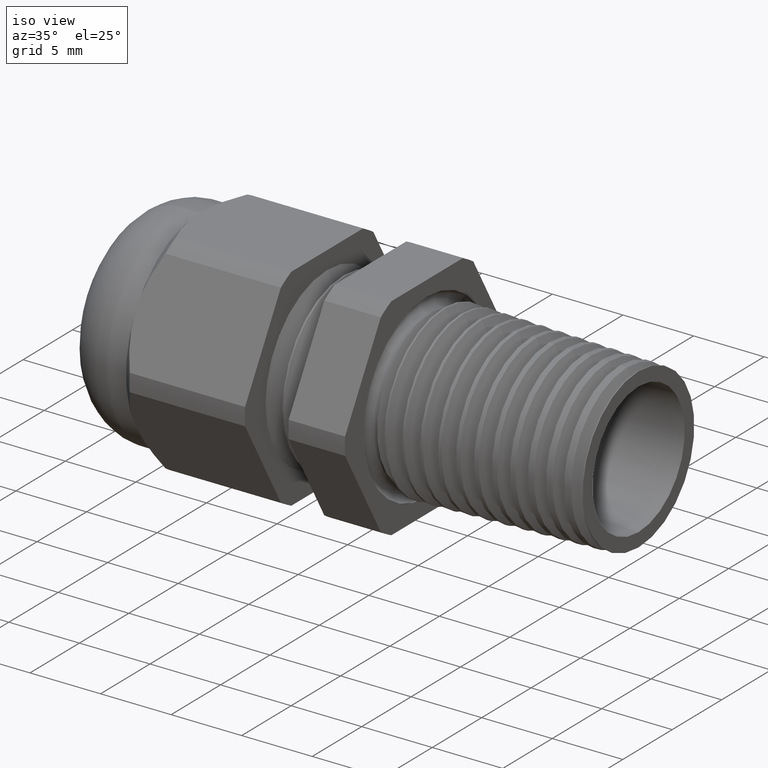
[diagram: clean part render]
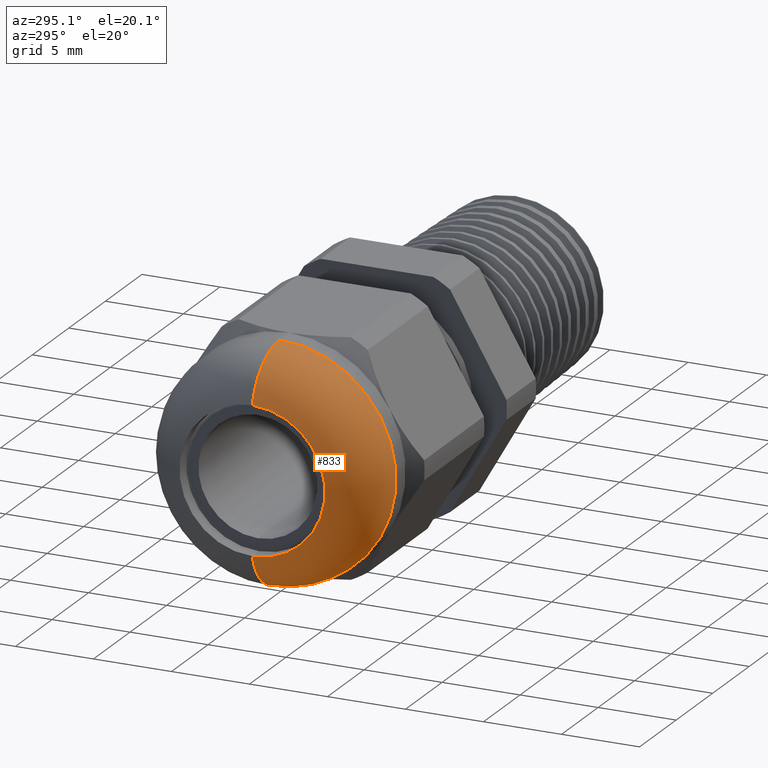
[diagram: tour spotlight — one face highlighted and labeled with its STEP entity id]
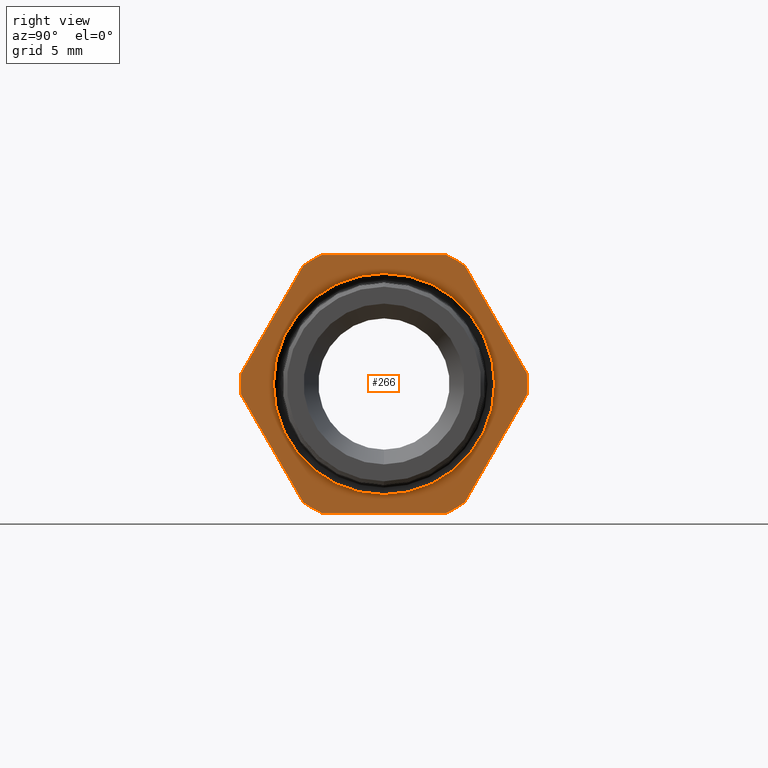
[diagram: tour spotlight — one face highlighted and labeled with its STEP entity id]
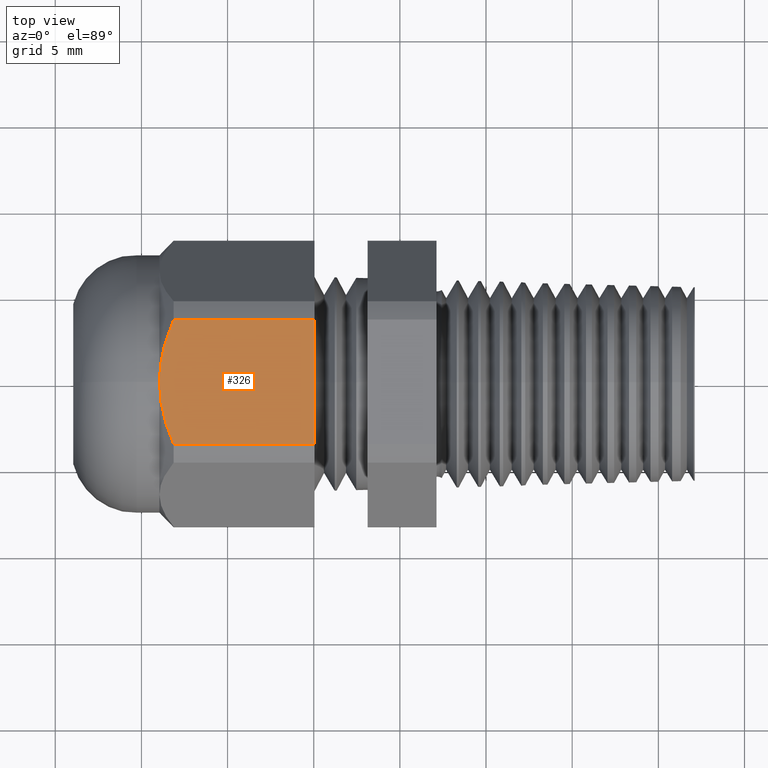
[diagram: tour spotlight — one face highlighted and labeled with its STEP entity id]
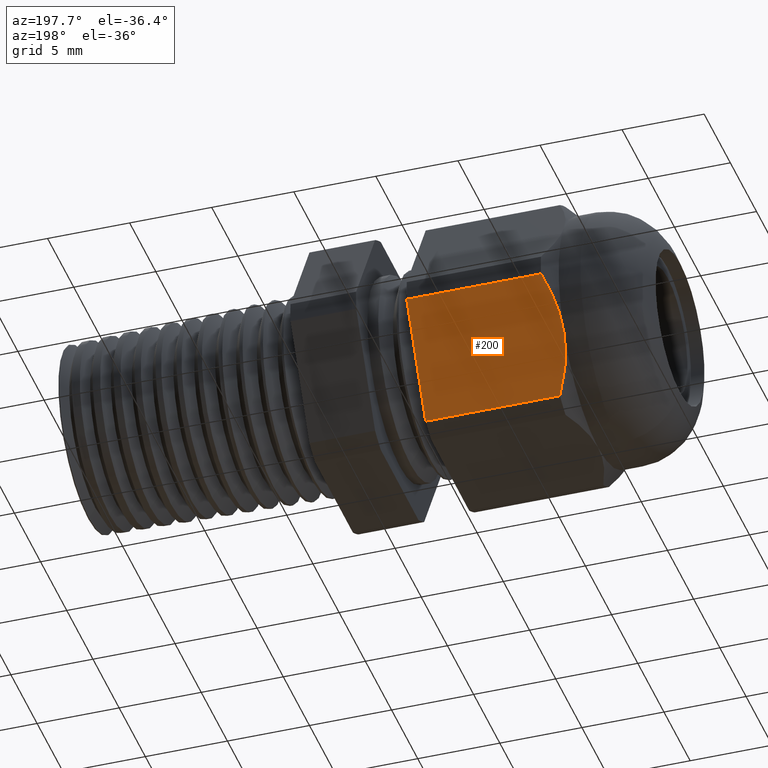
[diagram: tour spotlight — one face highlighted and labeled with its STEP entity id]
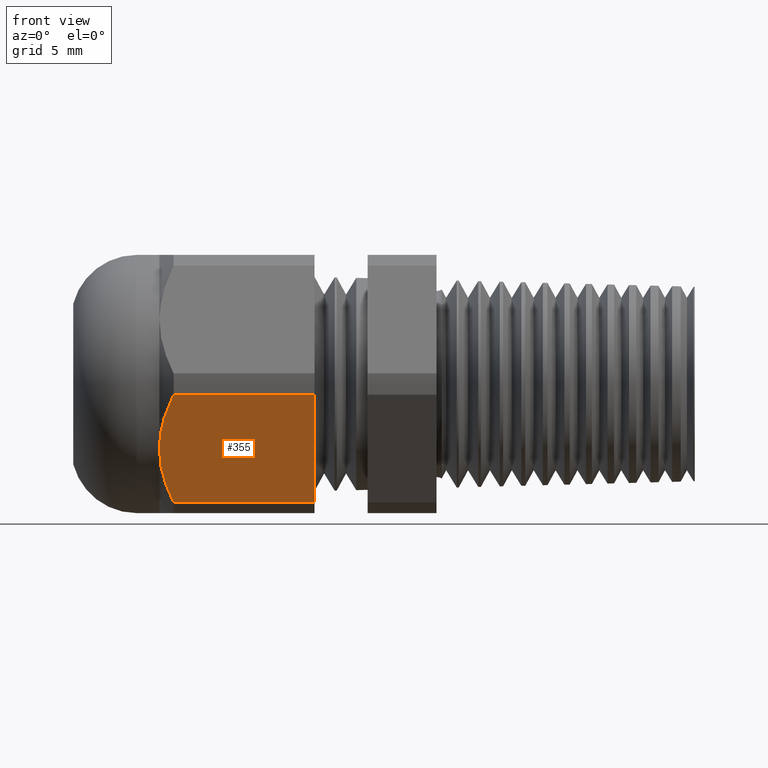
[diagram: tour spotlight — one face highlighted and labeled with its STEP entity id]
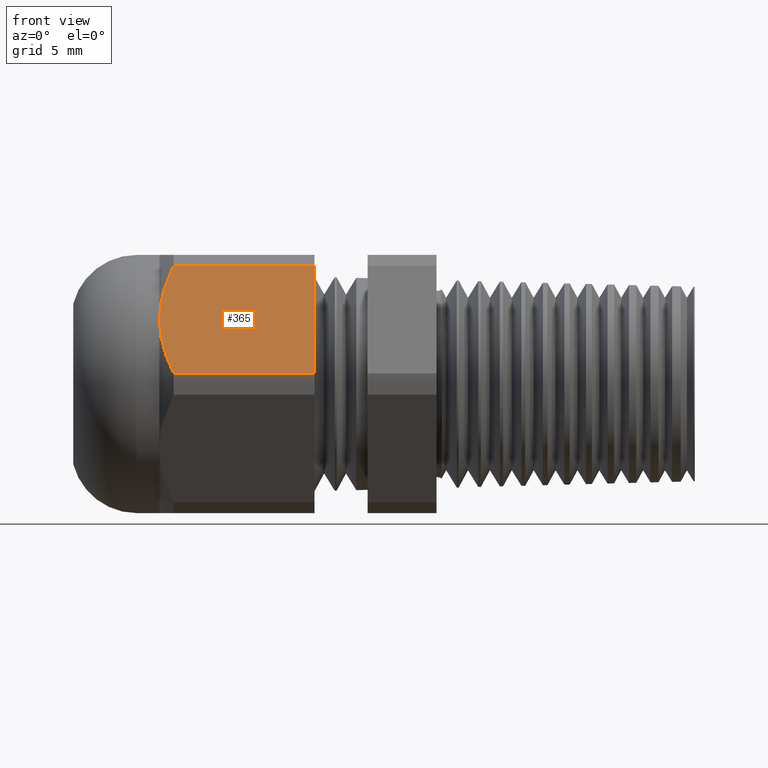
[diagram: tour spotlight — one face highlighted and labeled with its STEP entity id]
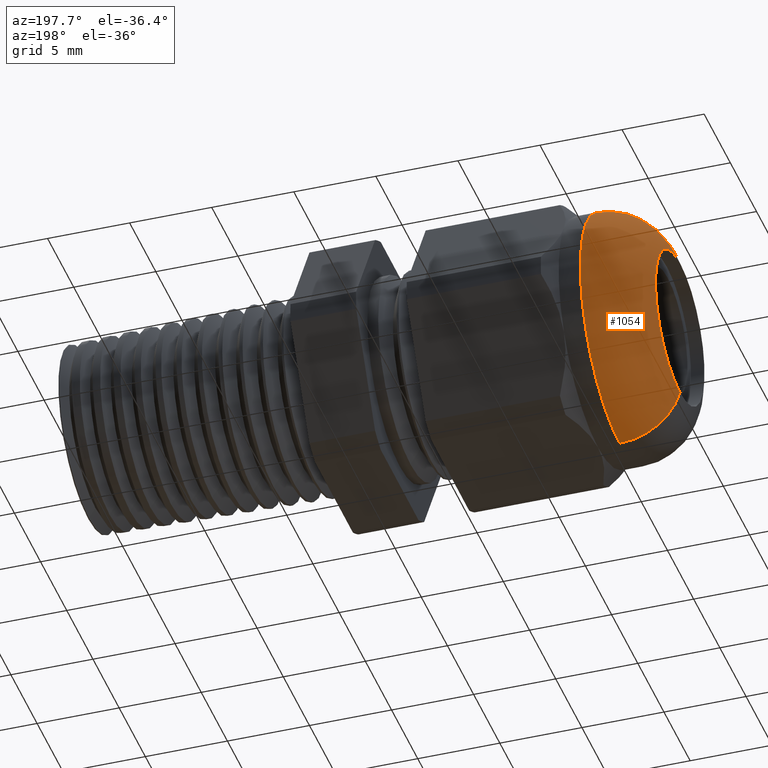
[diagram: tour spotlight — one face highlighted and labeled with its STEP entity id]
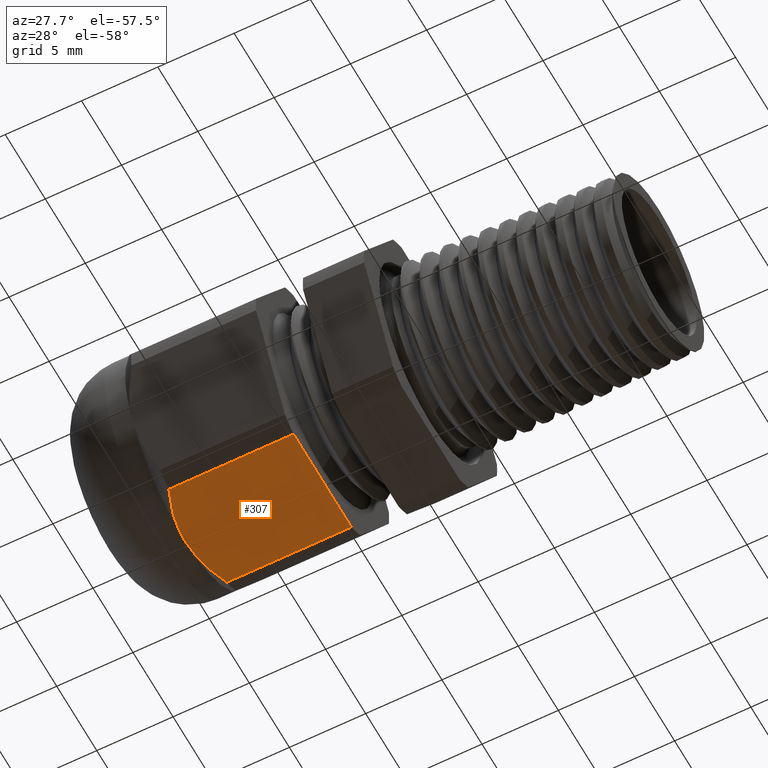
[diagram: tour spotlight — one face highlighted and labeled with its STEP entity id]
A machine part: a face-by-face anatomy tour. The part has 141 B-rep faces; the first image is the clean iso view, then the 8 largest visible faces are spotlighted one at a time (largest first), each with its STEP entity span.

Face 1 — auxiliary view, entity #833. In plain terms, the highlighted toroidal blend (fillet) surface has major radius 3.683 mm and minor (blend) radius 3.81 mm.
Definition (entity closure, byte-faithful):
#193 = EDGE_CURVE ( 'NONE', #1090, #1089, #1717, .T. ) ;
#492 = EDGE_CURVE ( 'NONE', #1065, #1058, #2314, .T. ) ;
#833 = ADVANCED_FACE ( 'NONE', ( #2847 ), #2846, .T. ) ;
#834 = EDGE_LOOP ( 'NONE', ( #835, #836, #888, #889 ) ) ;
#835 = ORIENTED_EDGE ( 'NONE', *, *, #1088, .F. ) ;
#836 = ORIENTED_EDGE ( 'NONE', *, *, #492, .F. ) ;
#888 = ORIENTED_EDGE ( 'NONE', *, *, #1144, .T. ) ;
#889 = ORIENTED_EDGE ( 'NONE', *, *, #193, .T. ) ;
#1058 = VERTEX_POINT ( 'NONE', #3200 ) ;
#1065 = VERTEX_POINT ( 'NONE', #3188 ) ;
#1088 = EDGE_CURVE ( 'NONE', #1058, #1089, #3205, .T. ) ;
#1089 = VERTEX_POINT ( 'NONE', #3262 ) ;
#1090 = VERTEX_POINT ( 'NONE', #3261 ) ;
#1144 = EDGE_CURVE ( 'NONE', #1065, #1090, #3358, .T. ) ;
#1713 = DIRECTION ( 'NONE',  ( 0.0000000000000000000, 0.0000000000000000000, -1.000000000000000000 ) ) ;
#1714 = DIRECTION ( 'NONE',  ( 1.000000000000000000, 0.0000000000000000000, 0.0000000000000000000 ) ) ;
#1715 = CARTESIAN_POINT ( 'NONE',  ( -1.139999999999999900, 0.0000000000000000000, 0.0000000000000000000 ) ) ;
#1716 = AXIS2_PLACEMENT_3D ( 'NONE', #1715, #1714, #1713 ) ;
#1717 = CIRCLE ( 'NONE', #1716, 0.1837500000000000000 ) ;
#2311 = DIRECTION ( 'NONE',  ( 0.0000000000000000000, 0.0000000000000000000, 1.000000000000000000 ) ) ;
#2312 = DIRECTION ( 'NONE',  ( 1.000000000000000000, 0.0000000000000000000, 0.0000000000000000000 ) ) ;
#2313 = AXIS2_PLACEMENT_3D ( 'NONE', #2319, #2312, #2311 ) ;
#2314 = CIRCLE ( 'NONE', #2313, 0.2950000000000000400 ) ;
#2319 = CARTESIAN_POINT ( 'NONE',  ( -0.9950916237755731400, 0.0000000000000000000, 0.0000000000000000000 ) ) ;
#2841 = DIRECTION ( 'NONE',  ( 0.0000000000000000000, 0.0000000000000000000, 1.000000000000000000 ) ) ;
#2842 = DIRECTION ( 'NONE',  ( -1.000000000000000000, 0.0000000000000000000, 0.0000000000000000000 ) ) ;
#2843 = CARTESIAN_POINT ( 'NONE',  ( -0.9950916237755731400, 0.0000000000000000000, 0.0000000000000000000 ) ) ;
#2844 = AXIS2_PLACEMENT_3D ( 'NONE', #2843, #2842, #2841 ) ;
#2846 = TOROIDAL_SURFACE ( 'NONE', #2844, 0.1450000000000000500, 0.1499999999999999900 ) ;
#2847 = FACE_OUTER_BOUND ( 'NONE', #834, .T. ) ;
#3188 = CARTESIAN_POINT ( 'NONE',  ( -0.9950916237755731400, 3.612708057484692600E-017, 0.2950000000000000400 ) ) ;
#3200 = CARTESIAN_POINT ( 'NONE',  ( -0.9950916237755731400, 0.0000000000000000000, -0.2950000000000000400 ) ) ;
#3203 = CARTESIAN_POINT ( 'NONE',  ( -0.9950916237755731400, 1.775737858763662800E-017, -0.1450000000000000500 ) ) ;
#3204 = AXIS2_PLACEMENT_3D ( 'NONE', #3203, #3264, #3263 ) ;
#3205 = CIRCLE ( 'NONE', #3204, 0.1499999999999999900 ) ;
#3261 = CARTESIAN_POINT ( 'NONE',  ( -1.139999999999999900, 2.250288493433261500E-017, 0.1837500000000000000 ) ) ;
#3262 = CARTESIAN_POINT ( 'NONE',  ( -1.139999999999999900, 0.0000000000000000000, -0.1837500000000000000 ) ) ;
#3263 = DIRECTION ( 'NONE',  ( 0.0000000000000000000, -1.224646799147353000E-016, 1.000000000000000000 ) ) ;
#3264 = DIRECTION ( 'NONE',  ( 0.0000000000000000000, 1.000000000000000000, 1.224646799147353200E-016 ) ) ;
#3354 = DIRECTION ( 'NONE',  ( 0.0000000000000000000, 0.0000000000000000000, -1.000000000000000000 ) ) ;
#3355 = DIRECTION ( 'NONE',  ( 0.0000000000000000000, -1.000000000000000000, 0.0000000000000000000 ) ) ;
#3356 = CARTESIAN_POINT ( 'NONE',  ( -0.9950916237755731400, 0.0000000000000000000, 0.1450000000000000500 ) ) ;
#3357 = AXIS2_PLACEMENT_3D ( 'NONE', #3356, #3355, #3354 ) ;
#3358 = CIRCLE ( 'NONE', #3357, 0.1499999999999999900 ) ;

Face 2 — right view, entity #266. In plain terms, the highlighted planar face has unit normal (1, 0, 0).
Definition (entity closure, byte-faithful):
#198 = ORIENTED_EDGE ( 'NONE', *, *, #205, .T. ) ;
#205 = EDGE_CURVE ( 'NONE', #207, #206, #1754, .T. ) ;
#206 = VERTEX_POINT ( 'NONE', #1750 ) ;
#207 = VERTEX_POINT ( 'NONE', #1749 ) ;
#208 = ORIENTED_EDGE ( 'NONE', *, *, #209, .T. ) ;
#209 = EDGE_CURVE ( 'NONE', #213, #228, #1748, .T. ) ;
#210 = EDGE_LOOP ( 'NONE', ( #198, #273, #214, #237, #208, #271, #232, #219, #222, #225, #274, #261 ) ) ;
#211 = EDGE_CURVE ( 'NONE', #206, #260, #1744, .T. ) ;
#212 = EDGE_CURVE ( 'NONE', #283, #213, #1739, .T. ) ;
#213 = VERTEX_POINT ( 'NONE', #1734 ) ;
#214 = ORIENTED_EDGE ( 'NONE', *, *, #229, .T. ) ;
#215 = EDGE_CURVE ( 'NONE', #1141, #1046, #1733, .T. ) ;
#219 = ORIENTED_EDGE ( 'NONE', *, *, #220, .T. ) ;
#220 = EDGE_CURVE ( 'NONE', #234, #221, #1789, .T. ) ;
#221 = VERTEX_POINT ( 'NONE', #1779 ) ;
#222 = ORIENTED_EDGE ( 'NONE', *, *, #223, .T. ) ;
#223 = EDGE_CURVE ( 'NONE', #221, #224, #1778, .T. ) ;
#224 = VERTEX_POINT ( 'NONE', #1774 ) ;
#225 = ORIENTED_EDGE ( 'NONE', *, *, #226, .T. ) ;
#226 = EDGE_CURVE ( 'NONE', #224, #227, #1773, .T. ) ;
#227 = VERTEX_POINT ( 'NONE', #1768 ) ;
#228 = VERTEX_POINT ( 'NONE', #1767 ) ;
#229 = EDGE_CURVE ( 'NONE', #260, #283, #1766, .T. ) ;
#230 = EDGE_CURVE ( 'NONE', #228, #231, #1762, .T. ) ;
#231 = VERTEX_POINT ( 'NONE', #1820 ) ;
#232 = ORIENTED_EDGE ( 'NONE', *, *, #233, .T. ) ;
#233 = EDGE_CURVE ( 'NONE', #231, #234, #1819, .T. ) ;
#234 = VERTEX_POINT ( 'NONE', #1815 ) ;
#237 = ORIENTED_EDGE ( 'NONE', *, *, #212, .T. ) ;
#260 = VERTEX_POINT ( 'NONE', #1836 ) ;
#261 = ORIENTED_EDGE ( 'NONE', *, *, #262, .T. ) ;
#262 = EDGE_CURVE ( 'NONE', #276, #207, #1835, .T. ) ;
#263 = EDGE_LOOP ( 'NONE', ( #264, #265 ) ) ;
#264 = ORIENTED_EDGE ( 'NONE', *, *, #1146, .T. ) ;
#265 = ORIENTED_EDGE ( 'NONE', *, *, #215, .T. ) ;
#266 = ADVANCED_FACE ( 'NONE', ( #1830, #1829 ), #1828, .T. ) ;
#271 = ORIENTED_EDGE ( 'NONE', *, *, #230, .T. ) ;
#273 = ORIENTED_EDGE ( 'NONE', *, *, #211, .T. ) ;
#274 = ORIENTED_EDGE ( 'NONE', *, *, #275, .T. ) ;
#275 = EDGE_CURVE ( 'NONE', #227, #276, #1879, .T. ) ;
#276 = VERTEX_POINT ( 'NONE', #1875 ) ;
#283 = VERTEX_POINT ( 'NONE', #1867 ) ;
#1046 = VERTEX_POINT ( 'NONE', #3159 ) ;
#1141 = VERTEX_POINT ( 'NONE', #3300 ) ;
#1146 = EDGE_CURVE ( 'NONE', #1046, #1141, #3348, .T. ) ;
#1729 = DIRECTION ( 'NONE',  ( 0.0000000000000000000, 0.0000000000000000000, -1.000000000000000000 ) ) ;
#1730 = DIRECTION ( 'NONE',  ( -1.000000000000000000, 0.0000000000000000000, 0.0000000000000000000 ) ) ;
#1731 = CARTESIAN_POINT ( 'NONE',  ( -0.3100000000000000000, 0.0000000000000000000, 0.0000000000000000000 ) ) ;
#1732 = AXIS2_PLACEMENT_3D ( 'NONE', #1731, #1730, #1729 ) ;
#1733 = CIRCLE ( 'NONE', #1732, 0.2526738545698894400 ) ;
#1734 = CARTESIAN_POINT ( 'NONE',  ( -0.3099999999999998300, 0.1421214357512617400, 0.2949999999999999800 ) ) ;
#1735 = DIRECTION ( 'NONE',  ( 0.0000000000000000000, 0.0000000000000000000, -1.000000000000000000 ) ) ;
#1736 = DIRECTION ( 'NONE',  ( 1.000000000000000000, 0.0000000000000000000, 0.0000000000000000000 ) ) ;
#1737 = CARTESIAN_POINT ( 'NONE',  ( -0.3100000000000000000, 0.0000000000000000000, 0.0000000000000000000 ) ) ;
#1738 = AXIS2_PLACEMENT_3D ( 'NONE', #1737, #1736, #1735 ) ;
#1739 = CIRCLE ( 'NONE', #1738, 0.3274499999999999600 ) ;
#1740 = DIRECTION ( 'NONE',  ( 0.0000000000000000000, 0.0000000000000000000, -1.000000000000000000 ) ) ;
#1741 = DIRECTION ( 'NONE',  ( 1.000000000000000000, 0.0000000000000000000, 0.0000000000000000000 ) ) ;
#1742 = CARTESIAN_POINT ( 'NONE',  ( -0.3100000000000000000, 0.0000000000000000000, 0.0000000000000000000 ) ) ;
#1743 = AXIS2_PLACEMENT_3D ( 'NONE', #1742, #1741, #1740 ) ;
#1744 = CIRCLE ( 'NONE', #1743, 0.3274499999999999600 ) ;
#1745 = DIRECTION ( 'NONE',  ( 0.0000000000000000000, -1.000000000000000000, 0.0000000000000000000 ) ) ;
#1746 = VECTOR ( 'NONE', #1745, 39.37007874015748100 ) ;
#1747 = CARTESIAN_POINT ( 'NONE',  ( -0.3100000000000000000, 0.5900000000000000800, 0.2949999999999999800 ) ) ;
#1748 = LINE ( 'NONE', #1747, #1746 ) ;
#1749 = CARTESIAN_POINT ( 'NONE',  ( -0.3099999999999998300, 0.1844167762407789600, -0.2705807737829102900 ) ) ;
#1750 = CARTESIAN_POINT ( 'NONE',  ( -0.3100000000000000000, 0.3265382119920401400, -0.02441922621708981000 ) ) ;
#1751 = DIRECTION ( 'NONE',  ( 0.0000000000000000000, 0.4999999999999998300, 0.8660254037844388200 ) ) ;
#1752 = VECTOR ( 'NONE', #1751, 39.37007874015748100 ) ;
#1753 = CARTESIAN_POINT ( 'NONE',  ( -0.3100000000000000000, 0.4029774941164094300, 0.1079774941164093300 ) ) ;
#1754 = LINE ( 'NONE', #1753, #1752 ) ;
#1759 = DIRECTION ( 'NONE',  ( 1.000000000000000000, 0.0000000000000000000, 0.0000000000000000000 ) ) ;
#1760 = CARTESIAN_POINT ( 'NONE',  ( -0.3100000000000000000, 0.0000000000000000000, 0.0000000000000000000 ) ) ;
#1761 = AXIS2_PLACEMENT_3D ( 'NONE', #1760, #1759, #1821 ) ;
#1762 = CIRCLE ( 'NONE', #1761, 0.3274500000000000200 ) ;
#1763 = DIRECTION ( 'NONE',  ( 0.0000000000000000000, -0.5000000000000002200, 0.8660254037844386000 ) ) ;
#1764 = VECTOR ( 'NONE', #1763, 39.37007874015747400 ) ;
#1765 = CARTESIAN_POINT ( 'NONE',  ( -0.3100000000000000000, 0.4029774941164095400, -0.1079774941164093800 ) ) ;
#1766 = LINE ( 'NONE', #1765, #1764 ) ;
#1767 = CARTESIAN_POINT ( 'NONE',  ( -0.3099999999999998300, -0.1421214357512617700, 0.2949999999999999800 ) ) ;
#1768 = CARTESIAN_POINT ( 'NONE',  ( -0.3099999999999998300, -0.1421214357512615400, -0.2950000000000001000 ) ) ;
#1769 = DIRECTION ( 'NONE',  ( 0.0000000000000000000, 0.0000000000000000000, -1.000000000000000000 ) ) ;
#1770 = DIRECTION ( 'NONE',  ( 1.000000000000000000, 0.0000000000000000000, 0.0000000000000000000 ) ) ;
#1771 = CARTESIAN_POINT ( 'NONE',  ( -0.3100000000000000000, 0.0000000000000000000, 0.0000000000000000000 ) ) ;
#1772 = AXIS2_PLACEMENT_3D ( 'NONE', #1771, #1770, #1769 ) ;
#1773 = CIRCLE ( 'NONE', #1772, 0.3274500000000000200 ) ;
#1774 = CARTESIAN_POINT ( 'NONE',  ( -0.3099999999999998300, -0.1844167762407786500, -0.2705807737829104600 ) ) ;
#1775 = DIRECTION ( 'NONE',  ( 0.0000000000000000000, 0.5000000000000002200, -0.8660254037844386000 ) ) ;
#1776 = VECTOR ( 'NONE', #1775, 39.37007874015747400 ) ;
#1777 = CARTESIAN_POINT ( 'NONE',  ( -0.3100000000000000000, -0.1079774941164094900, -0.4029774941164097100 ) ) ;
#1778 = LINE ( 'NONE', #1777, #1776 ) ;
#1779 = CARTESIAN_POINT ( 'NONE',  ( -0.3099999999999998300, -0.3265382119920402500, -0.02441922621708977500 ) ) ;
#1780 = DIRECTION ( 'NONE',  ( 0.0000000000000000000, 0.0000000000000000000, -1.000000000000000000 ) ) ;
#1781 = DIRECTION ( 'NONE',  ( 1.000000000000000000, 0.0000000000000000000, 0.0000000000000000000 ) ) ;
#1782 = CARTESIAN_POINT ( 'NONE',  ( -0.3100000000000000000, 0.0000000000000000000, 0.0000000000000000000 ) ) ;
#1783 = AXIS2_PLACEMENT_3D ( 'NONE', #1782, #1781, #1780 ) ;
#1789 = CIRCLE ( 'NONE', #1783, 0.3274500000000000200 ) ;
#1815 = CARTESIAN_POINT ( 'NONE',  ( -0.3099999999999998300, -0.3265382119920402500, 0.02441922621708947700 ) ) ;
#1816 = DIRECTION ( 'NONE',  ( 0.0000000000000000000, -0.4999999999999998300, -0.8660254037844388200 ) ) ;
#1817 = VECTOR ( 'NONE', #1816, 39.37007874015748100 ) ;
#1818 = CARTESIAN_POINT ( 'NONE',  ( -0.3100000000000000000, -0.1079774941164096300, 0.4029774941164093700 ) ) ;
#1819 = LINE ( 'NONE', #1818, #1817 ) ;
#1820 = CARTESIAN_POINT ( 'NONE',  ( -0.3099999999999998300, -0.1844167762407789300, 0.2705807737829102900 ) ) ;
#1821 = DIRECTION ( 'NONE',  ( 0.0000000000000000000, 0.0000000000000000000, -1.000000000000000000 ) ) ;
#1824 = DIRECTION ( 'NONE',  ( 0.0000000000000000000, 0.0000000000000000000, -1.000000000000000000 ) ) ;
#1825 = DIRECTION ( 'NONE',  ( 1.000000000000000000, 0.0000000000000000000, 0.0000000000000000000 ) ) ;
#1826 = CARTESIAN_POINT ( 'NONE',  ( -0.3100000000000000000, 0.5900000000000000800, 0.0000000000000000000 ) ) ;
#1827 = AXIS2_PLACEMENT_3D ( 'NONE', #1826, #1825, #1824 ) ;
#1828 = PLANE ( 'NONE',  #1827 ) ;
#1829 = FACE_BOUND ( 'NONE', #263, .T. ) ;
#1830 = FACE_OUTER_BOUND ( 'NONE', #210, .T. ) ;
#1831 = DIRECTION ( 'NONE',  ( 0.0000000000000000000, 0.0000000000000000000, -1.000000000000000000 ) ) ;
#1832 = DIRECTION ( 'NONE',  ( 1.000000000000000000, 0.0000000000000000000, 0.0000000000000000000 ) ) ;
#1833 = CARTESIAN_POINT ( 'NONE',  ( -0.3100000000000000000, 0.0000000000000000000, 0.0000000000000000000 ) ) ;
#1834 = AXIS2_PLACEMENT_3D ( 'NONE', #1833, #1832, #1831 ) ;
#1835 = CIRCLE ( 'NONE', #1834, 0.3274500000000000200 ) ;
#1836 = CARTESIAN_POINT ( 'NONE',  ( -0.3099999999999998300, 0.3265382119920401900, 0.02441922621708981000 ) ) ;
#1867 = CARTESIAN_POINT ( 'NONE',  ( -0.3099999999999998300, 0.1844167762407788200, 0.2705807737829102900 ) ) ;
#1875 = CARTESIAN_POINT ( 'NONE',  ( -0.3099999999999998300, 0.1421214357512616000, -0.2950000000000000400 ) ) ;
#1876 = DIRECTION ( 'NONE',  ( 0.0000000000000000000, 1.000000000000000000, 0.0000000000000000000 ) ) ;
#1877 = VECTOR ( 'NONE', #1876, 39.37007874015748100 ) ;
#1878 = CARTESIAN_POINT ( 'NONE',  ( -0.3100000000000000000, 0.5900000000000000800, -0.2950000000000001000 ) ) ;
#1879 = LINE ( 'NONE', #1878, #1877 ) ;
#3159 = CARTESIAN_POINT ( 'NONE',  ( -0.3100000000000000000, 0.0000000000000000000, -0.2526738545698894400 ) ) ;
#3300 = CARTESIAN_POINT ( 'NONE',  ( -0.3100000000000000000, 3.094362272272389200E-017, 0.2526738545698894400 ) ) ;
#3344 = DIRECTION ( 'NONE',  ( 0.0000000000000000000, 0.0000000000000000000, -1.000000000000000000 ) ) ;
#3345 = DIRECTION ( 'NONE',  ( -1.000000000000000000, 0.0000000000000000000, 0.0000000000000000000 ) ) ;
#3346 = CARTESIAN_POINT ( 'NONE',  ( -0.3100000000000000000, 0.0000000000000000000, 0.0000000000000000000 ) ) ;
#3347 = AXIS2_PLACEMENT_3D ( 'NONE', #3346, #3345, #3344 ) ;
#3348 = CIRCLE ( 'NONE', #3347, 0.2526738545698894400 ) ;

Face 3 — top view, entity #326. In plain terms, the highlighted planar face has unit normal (0, 0, 1).
Definition (entity closure, byte-faithful):
#135 = VERTEX_POINT ( 'NONE', #1632 ) ;
#326 = ADVANCED_FACE ( 'NONE', ( #1991 ), #1982, .T. ) ;
#327 = EDGE_LOOP ( 'NONE', ( #328, #384, #386, #388, #389 ) ) ;
#328 = ORIENTED_EDGE ( 'NONE', *, *, #329, .T. ) ;
#329 = EDGE_CURVE ( 'NONE', #330, #331, #1983, .T. ) ;
#330 = VERTEX_POINT ( 'NONE', #1974 ) ;
#331 = VERTEX_POINT ( 'NONE', #1973 ) ;
#346 = VERTEX_POINT ( 'NONE', #2008 ) ;
#384 = ORIENTED_EDGE ( 'NONE', *, *, #385, .T. ) ;
#385 = EDGE_CURVE ( 'NONE', #331, #135, #2093, .T. ) ;
#386 = ORIENTED_EDGE ( 'NONE', *, *, #387, .T. ) ;
#387 = EDGE_CURVE ( 'NONE', #135, #401, #2086, .T. ) ;
#388 = ORIENTED_EDGE ( 'NONE', *, *, #400, .F. ) ;
#389 = ORIENTED_EDGE ( 'NONE', *, *, #390, .F. ) ;
#390 = EDGE_CURVE ( 'NONE', #330, #346, #2145, .T. ) ;
#400 = EDGE_CURVE ( 'NONE', #346, #401, #2118, .T. ) ;
#401 = VERTEX_POINT ( 'NONE', #2113 ) ;
#1632 = CARTESIAN_POINT ( 'NONE',  ( -0.9431496062992125200, 0.0000000000000000000, 0.2950000000000000400 ) ) ;
#1973 = CARTESIAN_POINT ( 'NONE',  ( -0.9106996062992127600, 0.1421214357512617100, 0.2949999999999999300 ) ) ;
#1974 = CARTESIAN_POINT ( 'NONE',  ( -0.5888188976377950500, 0.1421214357512617400, 0.2949999999999999800 ) ) ;
#1975 = DIRECTION ( 'NONE',  ( -1.000000000000000000, 0.0000000000000000000, 0.0000000000000000000 ) ) ;
#1976 = VECTOR ( 'NONE', #1975, 39.37007874015748100 ) ;
#1977 = CARTESIAN_POINT ( 'NONE',  ( 0.2800000000000000300, 0.1421214357512617400, 0.2949999999999999800 ) ) ;
#1978 = DIRECTION ( 'NONE',  ( 1.000000000000000000, 0.0000000000000000000, 0.0000000000000000000 ) ) ;
#1979 = DIRECTION ( 'NONE',  ( 0.0000000000000000000, 0.0000000000000000000, 1.000000000000000000 ) ) ;
#1980 = CARTESIAN_POINT ( 'NONE',  ( 0.2800000000000000300, -0.1421214357512617400, 0.2949999999999999800 ) ) ;
#1981 = AXIS2_PLACEMENT_3D ( 'NONE', #1980, #1979, #1978 ) ;
#1982 = PLANE ( 'NONE',  #1981 ) ;
#1983 = LINE ( 'NONE', #1977, #1976 ) ;
#1991 = FACE_OUTER_BOUND ( 'NONE', #327, .T. ) ;
#2008 = CARTESIAN_POINT ( 'NONE',  ( -0.5888188976377950500, -0.1421214357512617700, 0.2949999999999999800 ) ) ;
#2086 = B_SPLINE_CURVE_WITH_KNOTS ( 'NONE', 3,
 ( #2143, #2142, #2141, #2140, #2139, #2138 ),
 .UNSPECIFIED., .F., .F.,
 ( 4, 2, 4 ),
 ( 0.009314603849055113800, 0.01116201179140059400, 0.01300941973374607600 ),
 .UNSPECIFIED. ) ;
#2087 = CARTESIAN_POINT ( 'NONE',  ( -0.9431496062992125200, 0.0000000000000000000, 0.2950000000000000400 ) ) ;
#2088 = CARTESIAN_POINT ( 'NONE',  ( -0.9431496062992127400, 0.02471049673043617900, 0.2949999999999999800 ) ) ;
#2089 = CARTESIAN_POINT ( 'NONE',  ( -0.9400050542586505500, 0.04893684351397713200, 0.2949999999999998700 ) ) ;
#2090 = CARTESIAN_POINT ( 'NONE',  ( -0.9286715673564235300, 0.09633948997954486200, 0.2950000000000000400 ) ) ;
#2091 = CARTESIAN_POINT ( 'NONE',  ( -0.9204124269437877800, 0.1197429458123298200, 0.2949999999999999300 ) ) ;
#2092 = CARTESIAN_POINT ( 'NONE',  ( -0.9106996062992127600, 0.1421214357512617100, 0.2949999999999999300 ) ) ;
#2093 = B_SPLINE_CURVE_WITH_KNOTS ( 'NONE', 3,
 ( #2092, #2091, #2090, #2089, #2088, #2087 ),
 .UNSPECIFIED., .F., .F.,
 ( 4, 2, 4 ),
 ( 0.005623237610587687700, 0.007468920729821400800, 0.009314603849055113800 ),
 .UNSPECIFIED. ) ;
#2113 = CARTESIAN_POINT ( 'NONE',  ( -0.9106996062992126500, -0.1421214357512617400, 0.2949999999999999800 ) ) ;
#2115 = DIRECTION ( 'NONE',  ( -1.000000000000000000, 0.0000000000000000000, 0.0000000000000000000 ) ) ;
#2116 = VECTOR ( 'NONE', #2115, 39.37007874015748100 ) ;
#2117 = CARTESIAN_POINT ( 'NONE',  ( 0.2800000000000000300, -0.1421214357512617700, 0.2949999999999999800 ) ) ;
#2118 = LINE ( 'NONE', #2117, #2116 ) ;
#2136 = DIRECTION ( 'NONE',  ( 0.0000000000000000000, -1.000000000000000000, 0.0000000000000000000 ) ) ;
#2137 = VECTOR ( 'NONE', #2136, 39.37007874015748100 ) ;
#2138 = CARTESIAN_POINT ( 'NONE',  ( -0.9106996062992126500, -0.1421214357512617400, 0.2949999999999999800 ) ) ;
#2139 = CARTESIAN_POINT ( 'NONE',  ( -0.9204213430718618500, -0.1197224029144734700, 0.2949999999999999800 ) ) ;
#2140 = CARTESIAN_POINT ( 'NONE',  ( -0.9286833312632042400, -0.09630224729656491900, 0.2949999999999998700 ) ) ;
#2141 = CARTESIAN_POINT ( 'NONE',  ( -0.9400118890367881200, -0.04889627699688071200, 0.2950000000000000400 ) ) ;
#2142 = CARTESIAN_POINT ( 'NONE',  ( -0.9431496062992121800, -0.02473358912122623100, 0.2949999999999999300 ) ) ;
#2143 = CARTESIAN_POINT ( 'NONE',  ( -0.9431496062992125200, 0.0000000000000000000, 0.2950000000000000400 ) ) ;
#2144 = CARTESIAN_POINT ( 'NONE',  ( -0.5888188976377952700, 0.2450000000000000000, 0.2949999999999999800 ) ) ;
#2145 = LINE ( 'NONE', #2144, #2137 ) ;

Face 4 — auxiliary view, entity #200. In plain terms, the highlighted planar face has unit normal (0, 0.866, -0.5).
Definition (entity closure, byte-faithful):
#141 = VERTEX_POINT ( 'NONE', #1620 ) ;
#200 = ADVANCED_FACE ( 'NONE', ( #1700 ), #1706, .T. ) ;
#201 = EDGE_LOOP ( 'NONE', ( #202, #280, #282, #245, #314 ) ) ;
#202 = ORIENTED_EDGE ( 'NONE', *, *, #203, .T. ) ;
#203 = EDGE_CURVE ( 'NONE', #278, #279, #1758, .T. ) ;
#245 = ORIENTED_EDGE ( 'NONE', *, *, #252, .F. ) ;
#252 = EDGE_CURVE ( 'NONE', #258, #309, #1852, .T. ) ;
#258 = VERTEX_POINT ( 'NONE', #1837 ) ;
#278 = VERTEX_POINT ( 'NONE', #1870 ) ;
#279 = VERTEX_POINT ( 'NONE', #1869 ) ;
#280 = ORIENTED_EDGE ( 'NONE', *, *, #281, .T. ) ;
#281 = EDGE_CURVE ( 'NONE', #279, #141, #1868, .T. ) ;
#282 = ORIENTED_EDGE ( 'NONE', *, *, #325, .T. ) ;
#309 = VERTEX_POINT ( 'NONE', #1912 ) ;
#314 = ORIENTED_EDGE ( 'NONE', *, *, #315, .F. ) ;
#315 = EDGE_CURVE ( 'NONE', #278, #258, #1961, .T. ) ;
#325 = EDGE_CURVE ( 'NONE', #141, #309, #1990, .T. ) ;
#1620 = CARTESIAN_POINT ( 'NONE',  ( -0.9431496062992125200, 0.2554774941164095800, -0.1475000000000000200 ) ) ;
#1696 = DIRECTION ( 'NONE',  ( 0.0000000000000000000, 0.4999999999999998300, 0.8660254037844388200 ) ) ;
#1697 = DIRECTION ( 'NONE',  ( 0.0000000000000000000, 0.8660254037844388200, -0.4999999999999998300 ) ) ;
#1698 = CARTESIAN_POINT ( 'NONE',  ( 0.2800000000000000300, 0.3265382119920401900, -0.02441922621708981700 ) ) ;
#1699 = AXIS2_PLACEMENT_3D ( 'NONE', #1698, #1697, #1696 ) ;
#1700 = FACE_OUTER_BOUND ( 'NONE', #201, .T. ) ;
#1706 = PLANE ( 'NONE',  #1699 ) ;
#1755 = DIRECTION ( 'NONE',  ( -1.000000000000000000, 0.0000000000000000000, 0.0000000000000000000 ) ) ;
#1756 = VECTOR ( 'NONE', #1755, 39.37007874015748100 ) ;
#1757 = CARTESIAN_POINT ( 'NONE',  ( 0.2800000000000000300, 0.1844167762407789600, -0.2705807737829102900 ) ) ;
#1758 = LINE ( 'NONE', #1757, #1756 ) ;
#1837 = CARTESIAN_POINT ( 'NONE',  ( -0.5888188976377952700, 0.3265382119920401900, -0.02441922621708982100 ) ) ;
#1849 = DIRECTION ( 'NONE',  ( -1.000000000000000000, 0.0000000000000000000, 0.0000000000000000000 ) ) ;
#1850 = VECTOR ( 'NONE', #1849, 39.37007874015748100 ) ;
#1851 = CARTESIAN_POINT ( 'NONE',  ( 0.2800000000000000300, 0.3265382119920401900, -0.02441922621708981700 ) ) ;
#1852 = LINE ( 'NONE', #1851, #1850 ) ;
#1858 = CARTESIAN_POINT ( 'NONE',  ( -0.9431496062992125200, 0.2554774941164095800, -0.1475000000000000200 ) ) ;
#1859 = CARTESIAN_POINT ( 'NONE',  ( -0.9431496062992125200, 0.2493255656419883800, -0.1581554526822272800 ) ) ;
#1860 = CARTESIAN_POINT ( 'NONE',  ( -0.9423597541994769300, 0.2431079549441580400, -0.1689246703125530900 ) ) ;
#1861 = CARTESIAN_POINT ( 'NONE',  ( -0.9393440840804790900, 0.2309564546779910600, -0.1899716861617411500 ) ) ;
#1862 = CARTESIAN_POINT ( 'NONE',  ( -0.9371242592069366500, 0.2249694283808217600, -0.2003415198946893500 ) ) ;
#1863 = CARTESIAN_POINT ( 'NONE',  ( -0.9286234589821580300, 0.2072378042758081200, -0.2310535937452860000 ) ) ;
#1864 = CARTESIAN_POINT ( 'NONE',  ( -0.9205124543615921300, 0.1957212535739864800, -0.2510008446887840900 ) ) ;
#1865 = CARTESIAN_POINT ( 'NONE',  ( -0.9106996062992127600, 0.1844167762407789600, -0.2705807737829102900 ) ) ;
#1868 = B_SPLINE_CURVE_WITH_KNOTS ( 'NONE', 3,
 ( #1865, #1864, #1863, #1862, #1861, #1860, #1859, #1858 ),
 .UNSPECIFIED., .F., .F.,
 ( 4, 2, 2, 4 ),
 ( 2.483256616467582400E-007, 0.001852741392019199900, 0.002778987925197977400, 0.003705234458376754900 ),
 .UNSPECIFIED. ) ;
#1869 = CARTESIAN_POINT ( 'NONE',  ( -0.9106996062992127600, 0.1844167762407789600, -0.2705807737829102900 ) ) ;
#1870 = CARTESIAN_POINT ( 'NONE',  ( -0.5888188976377950500, 0.1844167762407789600, -0.2705807737829102900 ) ) ;
#1912 = CARTESIAN_POINT ( 'NONE',  ( -0.9106996062992127600, 0.3265382119920401900, -0.02441922621708982100 ) ) ;
#1952 = DIRECTION ( 'NONE',  ( 0.0000000000000000000, 0.4999999999999998300, 0.8660254037844388200 ) ) ;
#1953 = VECTOR ( 'NONE', #1952, 39.37007874015748100 ) ;
#1960 = CARTESIAN_POINT ( 'NONE',  ( -0.5888188976377952700, 0.3167274941164095500, -0.04141188803640633000 ) ) ;
#1961 = LINE ( 'NONE', #1960, #1953 ) ;
#1984 = CARTESIAN_POINT ( 'NONE',  ( -0.9106996062992127600, 0.3265382119920401900, -0.02441922621708982100 ) ) ;
#1985 = CARTESIAN_POINT ( 'NONE',  ( -0.9205246189166957900, 0.3152197209966867100, -0.04402342768605287800 ) ) ;
#1986 = CARTESIAN_POINT ( 'NONE',  ( -0.9287500214326434000, 0.3035212574433307500, -0.06428576093095812700 ) ) ;
#1987 = CARTESIAN_POINT ( 'NONE',  ( -0.9400454127518774700, 0.2798230269374154500, -0.1053323002166822500 ) ) ;
#1988 = CARTESIAN_POINT ( 'NONE',  ( -0.9431496062992121800, 0.2677729136312345100, -0.1262037086999492600 ) ) ;
#1989 = CARTESIAN_POINT ( 'NONE',  ( -0.9431496062992125200, 0.2554774941164095800, -0.1475000000000000200 ) ) ;
#1990 = B_SPLINE_CURVE_WITH_KNOTS ( 'NONE', 3,
 ( #1989, #1988, #1987, #1986, #1985, #1984 ),
 .UNSPECIFIED., .F., .F.,
 ( 4, 2, 4 ),
 ( 0.003705234458376754900, 0.005556457167960809200, 0.007407679877544863500 ),
 .UNSPECIFIED. ) ;

Face 5 — front view, entity #355. In plain terms, the highlighted planar face has unit normal (0, -0.866, -0.5).
Definition (entity closure, byte-faithful):
#253 = EDGE_CURVE ( 'NONE', #254, #255, #1848, .T. ) ;
#254 = VERTEX_POINT ( 'NONE', #1844 ) ;
#255 = VERTEX_POINT ( 'NONE', #1843 ) ;
#291 = VERTEX_POINT ( 'NONE', #1906 ) ;
#292 = VERTEX_POINT ( 'NONE', #1904 ) ;
#293 = ORIENTED_EDGE ( 'NONE', *, *, #294, .T. ) ;
#294 = EDGE_CURVE ( 'NONE', #292, #295, #1895, .T. ) ;
#295 = VERTEX_POINT ( 'NONE', #1894 ) ;
#296 = ORIENTED_EDGE ( 'NONE', *, *, #297, .T. ) ;
#297 = EDGE_CURVE ( 'NONE', #295, #255, #1885, .T. ) ;
#298 = ORIENTED_EDGE ( 'NONE', *, *, #253, .F. ) ;
#299 = ORIENTED_EDGE ( 'NONE', *, *, #300, .F. ) ;
#300 = EDGE_CURVE ( 'NONE', #291, #254, #1938, .T. ) ;
#355 = ADVANCED_FACE ( 'NONE', ( #2041 ), #2040, .T. ) ;
#356 = EDGE_LOOP ( 'NONE', ( #357, #293, #296, #298, #299 ) ) ;
#357 = ORIENTED_EDGE ( 'NONE', *, *, #358, .T. ) ;
#358 = EDGE_CURVE ( 'NONE', #291, #292, #2035, .T. ) ;
#1843 = CARTESIAN_POINT ( 'NONE',  ( -0.9106996062992126500, -0.1844167762407787100, -0.2705807737829105700 ) ) ;
#1844 = CARTESIAN_POINT ( 'NONE',  ( -0.5888188976377950500, -0.1844167762407786500, -0.2705807737829104600 ) ) ;
#1845 = DIRECTION ( 'NONE',  ( -1.000000000000000000, 0.0000000000000000000, 0.0000000000000000000 ) ) ;
#1846 = VECTOR ( 'NONE', #1845, 39.37007874015748100 ) ;
#1847 = CARTESIAN_POINT ( 'NONE',  ( 0.2800000000000000300, -0.1844167762407786500, -0.2705807737829104600 ) ) ;
#1848 = LINE ( 'NONE', #1847, #1846 ) ;
#1883 = CARTESIAN_POINT ( 'NONE',  ( -0.9431496062992121800, -0.2431820746015843900, -0.1687962913000509200 ) ) ;
#1884 = CARTESIAN_POINT ( 'NONE',  ( -0.9431496062992125200, -0.2554774941164095200, -0.1475000000000001000 ) ) ;
#1885 = B_SPLINE_CURVE_WITH_KNOTS ( 'NONE', 3,
 ( #1884, #1883, #1937, #1936, #1935, #1934 ),
 .UNSPECIFIED., .F., .F.,
 ( 4, 2, 4 ),
 ( 0.003705234458376757900, 0.005556457167960817000, 0.007407679877544875700 ),
 .UNSPECIFIED. ) ;
#1886 = CARTESIAN_POINT ( 'NONE',  ( -0.9431496062992125200, -0.2554774941164095200, -0.1475000000000001000 ) ) ;
#1887 = CARTESIAN_POINT ( 'NONE',  ( -0.9431496062992123000, -0.2616294225908306600, -0.1368445473177728500 ) ) ;
#1888 = CARTESIAN_POINT ( 'NONE',  ( -0.9423597541994764800, -0.2678470332886610000, -0.1260753296874470600 ) ) ;
#1889 = CARTESIAN_POINT ( 'NONE',  ( -0.9393440840804787600, -0.2799985335548280700, -0.1050283138382588900 ) ) ;
#1890 = CARTESIAN_POINT ( 'NONE',  ( -0.9371242592069367600, -0.2859855598519973600, -0.09465848010531073600 ) ) ;
#1891 = CARTESIAN_POINT ( 'NONE',  ( -0.9286234589821581500, -0.3037171839570110800, -0.06394640625471403900 ) ) ;
#1892 = CARTESIAN_POINT ( 'NONE',  ( -0.9205124543615921300, -0.3152337346588327500, -0.04399915531121591900 ) ) ;
#1893 = CARTESIAN_POINT ( 'NONE',  ( -0.9106996062992126500, -0.3265382119920402500, -0.02441922621708977500 ) ) ;
#1894 = CARTESIAN_POINT ( 'NONE',  ( -0.9431496062992125200, -0.2554774941164095200, -0.1475000000000001000 ) ) ;
#1895 = B_SPLINE_CURVE_WITH_KNOTS ( 'NONE', 3,
 ( #1893, #1892, #1891, #1890, #1889, #1888, #1887, #1886 ),
 .UNSPECIFIED., .F., .F.,
 ( 4, 2, 2, 4 ),
 ( 2.483256616456085500E-007, 0.001852741392019200100, 0.002778987925197979100, 0.003705234458376757900 ),
 .UNSPECIFIED. ) ;
#1904 = CARTESIAN_POINT ( 'NONE',  ( -0.9106996062992126500, -0.3265382119920402500, -0.02441922621708977500 ) ) ;
#1906 = CARTESIAN_POINT ( 'NONE',  ( -0.5888188976377950500, -0.3265382119920402500, -0.02441922621708977500 ) ) ;
#1931 = DIRECTION ( 'NONE',  ( 0.0000000000000000000, 0.5000000000000002200, -0.8660254037844386000 ) ) ;
#1932 = VECTOR ( 'NONE', #1931, 39.37007874015747400 ) ;
#1933 = CARTESIAN_POINT ( 'NONE',  ( -0.5888188976377952700, -0.1942274941164094900, -0.2535881119635938200 ) ) ;
#1934 = CARTESIAN_POINT ( 'NONE',  ( -0.9106996062992126500, -0.1844167762407787100, -0.2705807737829105700 ) ) ;
#1935 = CARTESIAN_POINT ( 'NONE',  ( -0.9205246189166954600, -0.1957352672361321600, -0.2509765723139474900 ) ) ;
#1936 = CARTESIAN_POINT ( 'NONE',  ( -0.9287500214326438500, -0.2074337307894881500, -0.2307142390690421200 ) ) ;
#1937 = CARTESIAN_POINT ( 'NONE',  ( -0.9400454127518775800, -0.2311319612954036700, -0.1896676997833179600 ) ) ;
#1938 = LINE ( 'NONE', #1933, #1932 ) ;
#2032 = DIRECTION ( 'NONE',  ( -1.000000000000000000, 0.0000000000000000000, 0.0000000000000000000 ) ) ;
#2033 = VECTOR ( 'NONE', #2032, 39.37007874015748100 ) ;
#2034 = CARTESIAN_POINT ( 'NONE',  ( 0.2800000000000000300, -0.3265382119920402500, -0.02441922621708977500 ) ) ;
#2035 = LINE ( 'NONE', #2034, #2033 ) ;
#2036 = DIRECTION ( 'NONE',  ( 0.0000000000000000000, 0.5000000000000001100, -0.8660254037844386000 ) ) ;
#2037 = DIRECTION ( 'NONE',  ( 0.0000000000000000000, -0.8660254037844386000, -0.5000000000000001100 ) ) ;
#2038 = CARTESIAN_POINT ( 'NONE',  ( 0.2800000000000000300, -0.1844167762407787900, -0.2705807737829104000 ) ) ;
#2039 = AXIS2_PLACEMENT_3D ( 'NONE', #2038, #2037, #2036 ) ;
#2040 = PLANE ( 'NONE',  #2039 ) ;
#2041 = FACE_OUTER_BOUND ( 'NONE', #356, .T. ) ;

Face 6 — front view, entity #365. In plain terms, the highlighted planar face has unit normal (0, -0.866, 0.5).
Definition (entity closure, byte-faithful):
#185 = VERTEX_POINT ( 'NONE', #1674 ) ;
#284 = EDGE_LOOP ( 'NONE', ( #285, #289, #349, #348, #332 ) ) ;
#285 = ORIENTED_EDGE ( 'NONE', *, *, #286, .T. ) ;
#286 = EDGE_CURVE ( 'NONE', #287, #288, #1866, .T. ) ;
#287 = VERTEX_POINT ( 'NONE', #1854 ) ;
#288 = VERTEX_POINT ( 'NONE', #1853 ) ;
#289 = ORIENTED_EDGE ( 'NONE', *, *, #290, .T. ) ;
#290 = EDGE_CURVE ( 'NONE', #288, #185, #1905, .T. ) ;
#304 = EDGE_CURVE ( 'NONE', #305, #359, #1924, .T. ) ;
#305 = VERTEX_POINT ( 'NONE', #1920 ) ;
#332 = ORIENTED_EDGE ( 'NONE', *, *, #333, .F. ) ;
#333 = EDGE_CURVE ( 'NONE', #287, #305, #1972, .T. ) ;
#348 = ORIENTED_EDGE ( 'NONE', *, *, #304, .F. ) ;
#349 = ORIENTED_EDGE ( 'NONE', *, *, #350, .T. ) ;
#350 = EDGE_CURVE ( 'NONE', #185, #359, #2054, .T. ) ;
#359 = VERTEX_POINT ( 'NONE', #2031 ) ;
#365 = ADVANCED_FACE ( 'NONE', ( #2078 ), #2077, .T. ) ;
#1674 = CARTESIAN_POINT ( 'NONE',  ( -0.9431496062992125200, -0.2554774941164095800, 0.1475000000000000200 ) ) ;
#1853 = CARTESIAN_POINT ( 'NONE',  ( -0.9106996062992126500, -0.1844167762407789300, 0.2705807737829102900 ) ) ;
#1854 = CARTESIAN_POINT ( 'NONE',  ( -0.5888188976377950500, -0.1844167762407789300, 0.2705807737829102900 ) ) ;
#1855 = DIRECTION ( 'NONE',  ( -1.000000000000000000, 0.0000000000000000000, 0.0000000000000000000 ) ) ;
#1856 = VECTOR ( 'NONE', #1855, 39.37007874015748100 ) ;
#1857 = CARTESIAN_POINT ( 'NONE',  ( 0.2800000000000000300, -0.1844167762407789300, 0.2705807737829102900 ) ) ;
#1866 = LINE ( 'NONE', #1857, #1856 ) ;
#1896 = CARTESIAN_POINT ( 'NONE',  ( -0.9431496062992125200, -0.2554774941164095800, 0.1475000000000000200 ) ) ;
#1897 = CARTESIAN_POINT ( 'NONE',  ( -0.9431496062992125200, -0.2493255656419884100, 0.1581554526822272800 ) ) ;
#1898 = CARTESIAN_POINT ( 'NONE',  ( -0.9423597541994769300, -0.2431079549441580700, 0.1689246703125531500 ) ) ;
#1899 = CARTESIAN_POINT ( 'NONE',  ( -0.9393440840804790900, -0.2309564546779910600, 0.1899716861617412600 ) ) ;
#1900 = CARTESIAN_POINT ( 'NONE',  ( -0.9371242592069366500, -0.2249694283808216200, 0.2003415198946893500 ) ) ;
#1901 = CARTESIAN_POINT ( 'NONE',  ( -0.9286234589821580300, -0.2072378042758080700, 0.2310535937452861100 ) ) ;
#1902 = CARTESIAN_POINT ( 'NONE',  ( -0.9205124543615920100, -0.1957212535739864300, 0.2510008446887841400 ) ) ;
#1903 = CARTESIAN_POINT ( 'NONE',  ( -0.9106996062992126500, -0.1844167762407789300, 0.2705807737829102900 ) ) ;
#1905 = B_SPLINE_CURVE_WITH_KNOTS ( 'NONE', 3,
 ( #1903, #1902, #1901, #1900, #1899, #1898, #1897, #1896 ),
 .UNSPECIFIED., .F., .F.,
 ( 4, 2, 2, 4 ),
 ( 2.483256616460294200E-007, 0.001852741392019199600, 0.002778987925197977400, 0.003705234458376754900 ),
 .UNSPECIFIED. ) ;
#1920 = CARTESIAN_POINT ( 'NONE',  ( -0.5888188976377950500, -0.3265382119920402500, 0.02441922621708947700 ) ) ;
#1921 = DIRECTION ( 'NONE',  ( -1.000000000000000000, 0.0000000000000000000, 0.0000000000000000000 ) ) ;
#1922 = VECTOR ( 'NONE', #1921, 39.37007874015748100 ) ;
#1923 = CARTESIAN_POINT ( 'NONE',  ( 0.2800000000000000300, -0.3265382119920402500, 0.02441922621708947700 ) ) ;
#1924 = LINE ( 'NONE', #1923, #1922 ) ;
#1969 = DIRECTION ( 'NONE',  ( 0.0000000000000000000, -0.4999999999999998300, -0.8660254037844388200 ) ) ;
#1970 = VECTOR ( 'NONE', #1969, 39.37007874015748100 ) ;
#1971 = CARTESIAN_POINT ( 'NONE',  ( -0.5888188976377952700, -0.1942274941164095500, 0.2535881119635937100 ) ) ;
#1972 = LINE ( 'NONE', #1971, #1970 ) ;
#2031 = CARTESIAN_POINT ( 'NONE',  ( -0.9106996062992126500, -0.3265382119920403100, 0.02441922621708958100 ) ) ;
#2047 = CARTESIAN_POINT ( 'NONE',  ( -0.9106996062992126500, -0.3265382119920403100, 0.02441922621708958100 ) ) ;
#2048 = CARTESIAN_POINT ( 'NONE',  ( -0.9205246189166954600, -0.3152197209966867100, 0.04402342768605269800 ) ) ;
#2049 = CARTESIAN_POINT ( 'NONE',  ( -0.9287500214326438500, -0.3035212574433307500, 0.06428576093095796100 ) ) ;
#2050 = CARTESIAN_POINT ( 'NONE',  ( -0.9400454127518775800, -0.2798230269374155100, 0.1053323002166821900 ) ) ;
#2051 = CARTESIAN_POINT ( 'NONE',  ( -0.9431496062992121800, -0.2677729136312345100, 0.1262037086999492600 ) ) ;
#2052 = CARTESIAN_POINT ( 'NONE',  ( -0.9431496062992125200, -0.2554774941164095800, 0.1475000000000000200 ) ) ;
#2054 = B_SPLINE_CURVE_WITH_KNOTS ( 'NONE', 3,
 ( #2052, #2051, #2050, #2049, #2048, #2047 ),
 .UNSPECIFIED., .F., .F.,
 ( 4, 2, 4 ),
 ( 0.003705234458376754900, 0.005556457167960812700, 0.007407679877544871300 ),
 .UNSPECIFIED. ) ;
#2073 = DIRECTION ( 'NONE',  ( 0.0000000000000000000, -0.4999999999999998300, -0.8660254037844388200 ) ) ;
#2074 = DIRECTION ( 'NONE',  ( 0.0000000000000000000, -0.8660254037844388200, 0.4999999999999998300 ) ) ;
#2075 = CARTESIAN_POINT ( 'NONE',  ( 0.2800000000000000300, -0.3265382119920402500, 0.02441922621708968900 ) ) ;
#2076 = AXIS2_PLACEMENT_3D ( 'NONE', #2075, #2074, #2073 ) ;
#2077 = PLANE ( 'NONE',  #2076 ) ;
#2078 = FACE_OUTER_BOUND ( 'NONE', #284, .T. ) ;

Face 7 — auxiliary view, entity #1054. In plain terms, the highlighted toroidal blend (fillet) surface has major radius 3.683 mm and minor (blend) radius 3.81 mm.
Definition (entity closure, byte-faithful):
#1052 = ORIENTED_EDGE ( 'NONE', *, *, #1053, .T. ) ;
#1053 = EDGE_CURVE ( 'NONE', #1089, #1090, #3152, .T. ) ;
#1054 = ADVANCED_FACE ( 'NONE', ( #3143 ), #3142, .T. ) ;
#1058 = VERTEX_POINT ( 'NONE', #3200 ) ;
#1065 = VERTEX_POINT ( 'NONE', #3188 ) ;
#1066 = ORIENTED_EDGE ( 'NONE', *, *, #1088, .T. ) ;
#1079 = EDGE_LOOP ( 'NONE', ( #1142, #1066, #1052, #1143 ) ) ;
#1088 = EDGE_CURVE ( 'NONE', #1058, #1089, #3205, .T. ) ;
#1089 = VERTEX_POINT ( 'NONE', #3262 ) ;
#1090 = VERTEX_POINT ( 'NONE', #3261 ) ;
#1142 = ORIENTED_EDGE ( 'NONE', *, *, #1145, .F. ) ;
#1143 = ORIENTED_EDGE ( 'NONE', *, *, #1144, .F. ) ;
#1144 = EDGE_CURVE ( 'NONE', #1065, #1090, #3358, .T. ) ;
#1145 = EDGE_CURVE ( 'NONE', #1058, #1065, #3353, .T. ) ;
#3139 = DIRECTION ( 'NONE',  ( -1.000000000000000000, 0.0000000000000000000, 0.0000000000000000000 ) ) ;
#3140 = CARTESIAN_POINT ( 'NONE',  ( -0.9950916237755731400, 0.0000000000000000000, 0.0000000000000000000 ) ) ;
#3141 = AXIS2_PLACEMENT_3D ( 'NONE', #3140, #3139, #3202 ) ;
#3142 = TOROIDAL_SURFACE ( 'NONE', #3141, 0.1450000000000000500, 0.1499999999999999900 ) ;
#3143 = FACE_OUTER_BOUND ( 'NONE', #1079, .T. ) ;
#3144 = DIRECTION ( 'NONE',  ( 0.0000000000000000000, 0.0000000000000000000, -1.000000000000000000 ) ) ;
#3145 = DIRECTION ( 'NONE',  ( 1.000000000000000000, 0.0000000000000000000, 0.0000000000000000000 ) ) ;
#3146 = CARTESIAN_POINT ( 'NONE',  ( -1.139999999999999900, 0.0000000000000000000, 0.0000000000000000000 ) ) ;
#3147 = AXIS2_PLACEMENT_3D ( 'NONE', #3146, #3145, #3144 ) ;
#3152 = CIRCLE ( 'NONE', #3147, 0.1837500000000000000 ) ;
#3188 = CARTESIAN_POINT ( 'NONE',  ( -0.9950916237755731400, 3.612708057484692600E-017, 0.2950000000000000400 ) ) ;
#3200 = CARTESIAN_POINT ( 'NONE',  ( -0.9950916237755731400, 0.0000000000000000000, -0.2950000000000000400 ) ) ;
#3202 = DIRECTION ( 'NONE',  ( 0.0000000000000000000, 0.0000000000000000000, 1.000000000000000000 ) ) ;
#3203 = CARTESIAN_POINT ( 'NONE',  ( -0.9950916237755731400, 1.775737858763662800E-017, -0.1450000000000000500 ) ) ;
#3204 = AXIS2_PLACEMENT_3D ( 'NONE', #3203, #3264, #3263 ) ;
#3205 = CIRCLE ( 'NONE', #3204, 0.1499999999999999900 ) ;
#3261 = CARTESIAN_POINT ( 'NONE',  ( -1.139999999999999900, 2.250288493433261500E-017, 0.1837500000000000000 ) ) ;
#3262 = CARTESIAN_POINT ( 'NONE',  ( -1.139999999999999900, 0.0000000000000000000, -0.1837500000000000000 ) ) ;
#3263 = DIRECTION ( 'NONE',  ( 0.0000000000000000000, -1.224646799147353000E-016, 1.000000000000000000 ) ) ;
#3264 = DIRECTION ( 'NONE',  ( 0.0000000000000000000, 1.000000000000000000, 1.224646799147353200E-016 ) ) ;
#3349 = DIRECTION ( 'NONE',  ( 0.0000000000000000000, 0.0000000000000000000, 1.000000000000000000 ) ) ;
#3350 = DIRECTION ( 'NONE',  ( 1.000000000000000000, 0.0000000000000000000, 0.0000000000000000000 ) ) ;
#3351 = CARTESIAN_POINT ( 'NONE',  ( -0.9950916237755731400, 0.0000000000000000000, 0.0000000000000000000 ) ) ;
#3352 = AXIS2_PLACEMENT_3D ( 'NONE', #3351, #3350, #3349 ) ;
#3353 = CIRCLE ( 'NONE', #3352, 0.2950000000000000400 ) ;
#3354 = DIRECTION ( 'NONE',  ( 0.0000000000000000000, 0.0000000000000000000, -1.000000000000000000 ) ) ;
#3355 = DIRECTION ( 'NONE',  ( 0.0000000000000000000, -1.000000000000000000, 0.0000000000000000000 ) ) ;
#3356 = CARTESIAN_POINT ( 'NONE',  ( -0.9950916237755731400, 0.0000000000000000000, 0.1450000000000000500 ) ) ;
#3357 = AXIS2_PLACEMENT_3D ( 'NONE', #3356, #3355, #3354 ) ;
#3358 = CIRCLE ( 'NONE', #3357, 0.1499999999999999900 ) ;

Face 8 — auxiliary view, entity #307. In plain terms, the highlighted planar face has unit normal (0, 0, -1).
Definition (entity closure, byte-faithful):
#143 = VERTEX_POINT ( 'NONE', #1619 ) ;
#241 = VERTEX_POINT ( 'NONE', #1806 ) ;
#242 = VERTEX_POINT ( 'NONE', #1805 ) ;
#246 = ORIENTED_EDGE ( 'NONE', *, *, #321, .F. ) ;
#247 = ORIENTED_EDGE ( 'NONE', *, *, #248, .F. ) ;
#248 = EDGE_CURVE ( 'NONE', #308, #241, #1799, .T. ) ;
#307 = ADVANCED_FACE ( 'NONE', ( #1919 ), #1918, .T. ) ;
#308 = VERTEX_POINT ( 'NONE', #1913 ) ;
#310 = ORIENTED_EDGE ( 'NONE', *, *, #311, .T. ) ;
#311 = EDGE_CURVE ( 'NONE', #324, #143, #1910, .T. ) ;
#312 = ORIENTED_EDGE ( 'NONE', *, *, #313, .T. ) ;
#313 = EDGE_CURVE ( 'NONE', #143, #242, #1962, .T. ) ;
#319 = EDGE_LOOP ( 'NONE', ( #322, #310, #312, #246, #247 ) ) ;
#321 = EDGE_CURVE ( 'NONE', #241, #242, #1940, .T. ) ;
#322 = ORIENTED_EDGE ( 'NONE', *, *, #323, .T. ) ;
#323 = EDGE_CURVE ( 'NONE', #308, #324, #1996, .T. ) ;
#324 = VERTEX_POINT ( 'NONE', #1992 ) ;
#1619 = CARTESIAN_POINT ( 'NONE',  ( -0.9431496062992125200, 0.0000000000000000000, -0.2950000000000001500 ) ) ;
#1796 = DIRECTION ( 'NONE',  ( 0.0000000000000000000, 1.000000000000000000, 0.0000000000000000000 ) ) ;
#1797 = VECTOR ( 'NONE', #1796, 39.37007874015748100 ) ;
#1798 = CARTESIAN_POINT ( 'NONE',  ( -0.5888188976377952700, 0.2450000000000000000, -0.2950000000000001000 ) ) ;
#1799 = LINE ( 'NONE', #1798, #1797 ) ;
#1805 = CARTESIAN_POINT ( 'NONE',  ( -0.9106996062992126500, 0.1421214357512616000, -0.2950000000000000400 ) ) ;
#1806 = CARTESIAN_POINT ( 'NONE',  ( -0.5888188976377950500, 0.1421214357512616000, -0.2950000000000000400 ) ) ;
#1910 = B_SPLINE_CURVE_WITH_KNOTS ( 'NONE', 3,
 ( #1968, #1967, #1966, #1965, #1964, #1963 ),
 .UNSPECIFIED., .F., .F.,
 ( 4, 2, 4 ),
 ( 0.005421624679763330600, 0.007269778929319371600, 0.009117933178875412700 ),
 .UNSPECIFIED. ) ;
#1913 = CARTESIAN_POINT ( 'NONE',  ( -0.5888188976377950500, -0.1421214357512615400, -0.2950000000000001000 ) ) ;
#1914 = DIRECTION ( 'NONE',  ( -1.000000000000000000, 0.0000000000000000000, 0.0000000000000000000 ) ) ;
#1915 = DIRECTION ( 'NONE',  ( 0.0000000000000000000, 0.0000000000000000000, -1.000000000000000000 ) ) ;
#1916 = CARTESIAN_POINT ( 'NONE',  ( 0.2800000000000000300, 0.1421214357512615400, -0.2950000000000001000 ) ) ;
#1917 = AXIS2_PLACEMENT_3D ( 'NONE', #1916, #1915, #1914 ) ;
#1918 = PLANE ( 'NONE',  #1917 ) ;
#1919 = FACE_OUTER_BOUND ( 'NONE', #319, .T. ) ;
#1939 = CARTESIAN_POINT ( 'NONE',  ( 0.2800000000000000300, 0.1421214357512616000, -0.2950000000000000400 ) ) ;
#1940 = LINE ( 'NONE', #1939, #1998 ) ;
#1954 = CARTESIAN_POINT ( 'NONE',  ( -0.9106996062992126500, 0.1421214357512616000, -0.2950000000000000400 ) ) ;
#1955 = CARTESIAN_POINT ( 'NONE',  ( -0.9204124269437880000, 0.1197429458123298000, -0.2950000000000001000 ) ) ;
#1956 = CARTESIAN_POINT ( 'NONE',  ( -0.9286715673564230900, 0.09633948997954473700, -0.2950000000000001000 ) ) ;
#1957 = CARTESIAN_POINT ( 'NONE',  ( -0.9400050542586504400, 0.04893684351397706300, -0.2950000000000001000 ) ) ;
#1958 = CARTESIAN_POINT ( 'NONE',  ( -0.9431496062992121800, 0.02471049673043618200, -0.2949999999999999800 ) ) ;
#1959 = CARTESIAN_POINT ( 'NONE',  ( -0.9431496062992125200, 0.0000000000000000000, -0.2950000000000001500 ) ) ;
#1962 = B_SPLINE_CURVE_WITH_KNOTS ( 'NONE', 3,
 ( #1959, #1958, #1957, #1956, #1955, #1954 ),
 .UNSPECIFIED., .F., .F.,
 ( 4, 2, 4 ),
 ( 0.009117933178875412700, 0.01096436190853372300, 0.01281079063819203500 ),
 .UNSPECIFIED. ) ;
#1963 = CARTESIAN_POINT ( 'NONE',  ( -0.9431496062992125200, 0.0000000000000000000, -0.2950000000000001500 ) ) ;
#1964 = CARTESIAN_POINT ( 'NONE',  ( -0.9431496062992125200, -0.02473358912122618600, -0.2950000000000001000 ) ) ;
#1965 = CARTESIAN_POINT ( 'NONE',  ( -0.9400118890367877800, -0.04889627699688066400, -0.2950000000000001000 ) ) ;
#1966 = CARTESIAN_POINT ( 'NONE',  ( -0.9286833312632041300, -0.09630224729656479400, -0.2950000000000001000 ) ) ;
#1967 = CARTESIAN_POINT ( 'NONE',  ( -0.9204213430718617400, -0.1197224029144732200, -0.2949999999999999800 ) ) ;
#1968 = CARTESIAN_POINT ( 'NONE',  ( -0.9106996062992126500, -0.1421214357512615200, -0.2950000000000001000 ) ) ;
#1992 = CARTESIAN_POINT ( 'NONE',  ( -0.9106996062992126500, -0.1421214357512615200, -0.2950000000000001000 ) ) ;
#1993 = DIRECTION ( 'NONE',  ( -1.000000000000000000, 0.0000000000000000000, 0.0000000000000000000 ) ) ;
#1994 = VECTOR ( 'NONE', #1993, 39.37007874015748100 ) ;
#1995 = CARTESIAN_POINT ( 'NONE',  ( 0.2800000000000000300, -0.1421214357512615400, -0.2950000000000001000 ) ) ;
#1996 = LINE ( 'NONE', #1995, #1994 ) ;
#1997 = DIRECTION ( 'NONE',  ( -1.000000000000000000, 0.0000000000000000000, 0.0000000000000000000 ) ) ;
#1998 = VECTOR ( 'NONE', #1997, 39.37007874015748100 ) ;